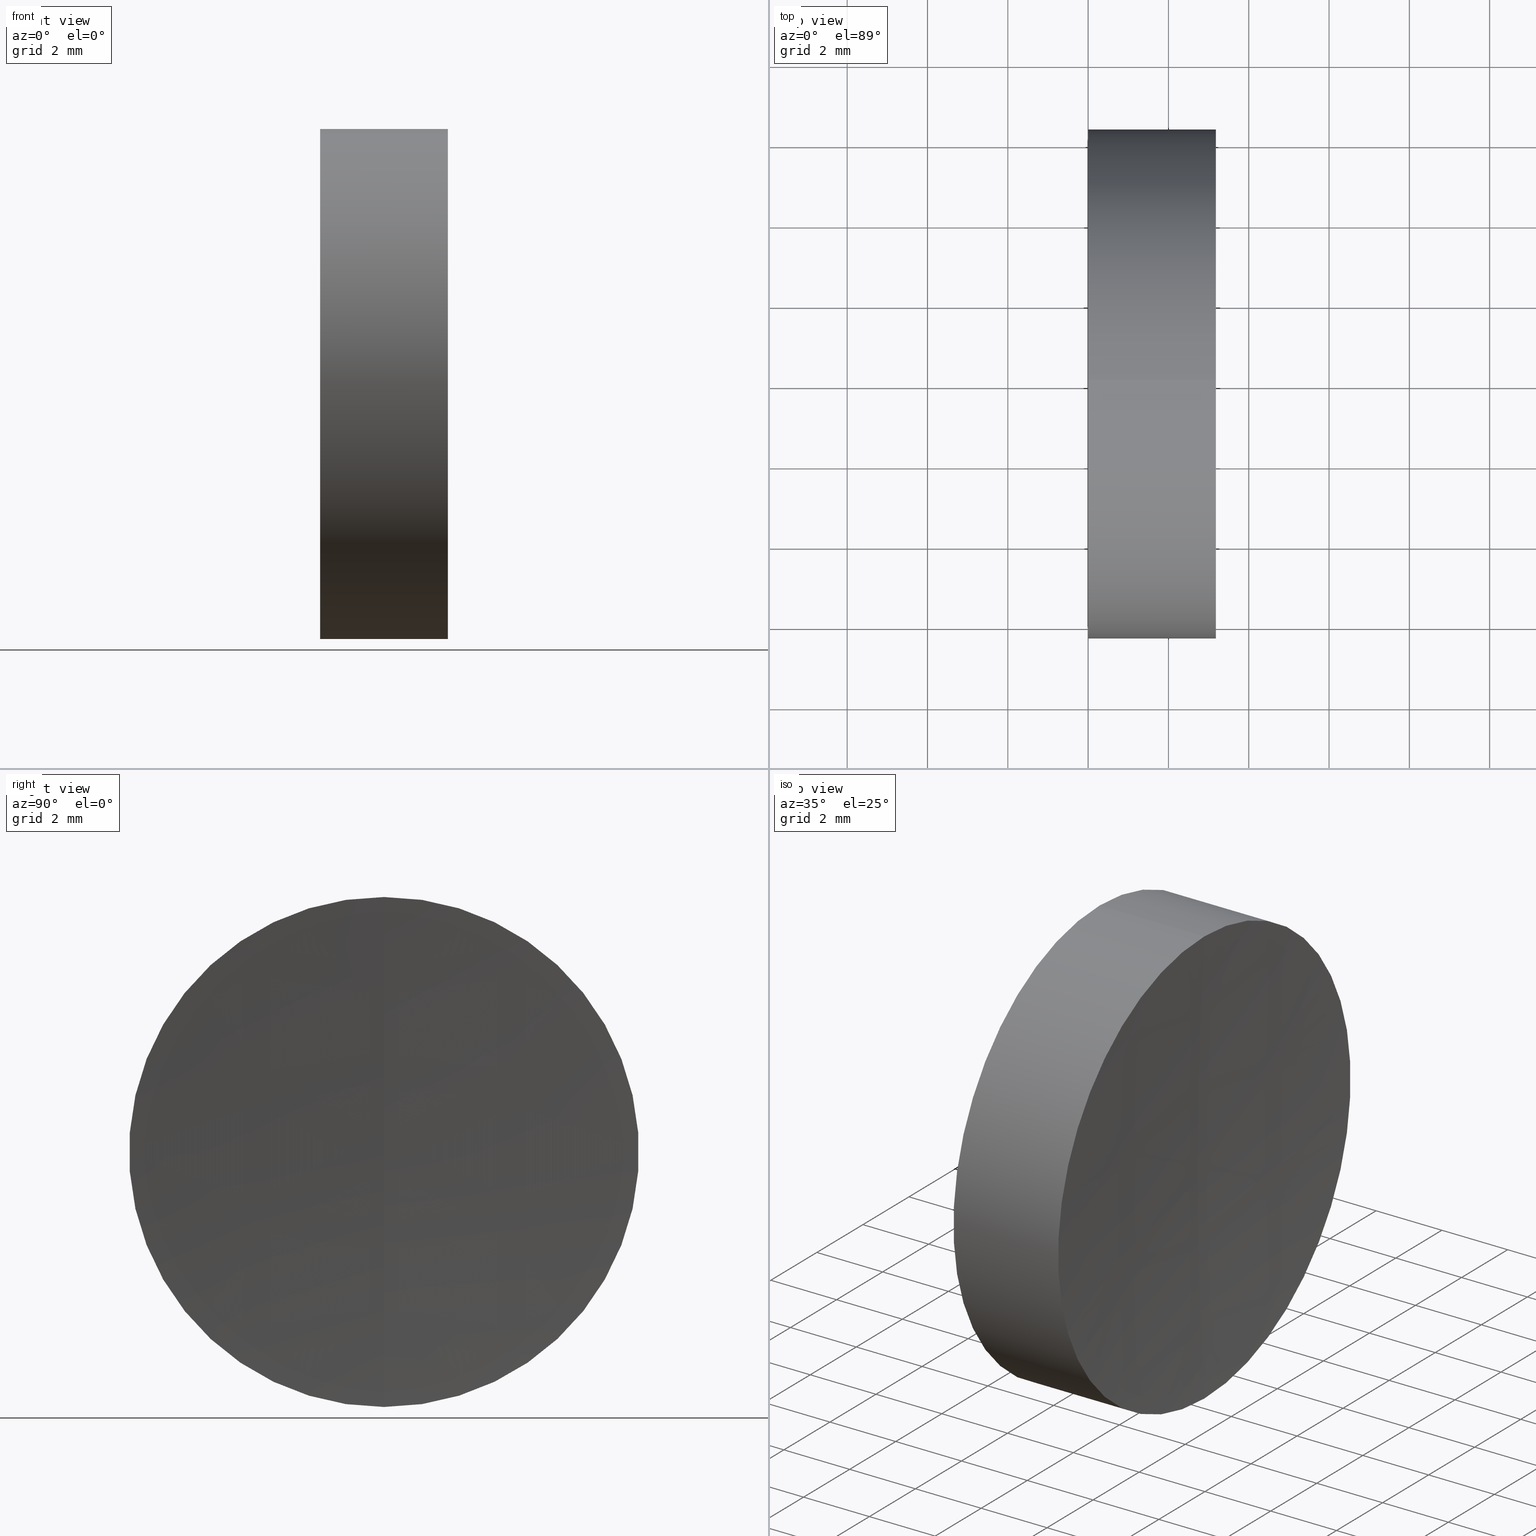
[diagram: canonical four-view strip — front | top / right | iso, engineering-drawing reading convention]
A machine part, canonical four-view strip (front | top / right | iso — engineering-drawing reading convention). The complete STEP part file that produces these views, byte-faithful:
ISO-10303-21;
HEADER;
FILE_DESCRIPTION (( 'STEP AP214' ),
    '1' );
FILE_NAME ('432502.STEP',
    '2019-08-26T08:35:27',
    ( 'user' ),
    ( '΢���й�' ),
    'SwSTEP 2.0',
    'SolidWorks 2016',
    '' );
FILE_SCHEMA (( 'AUTOMOTIVE_DESIGN' ));
ENDSEC;

DATA;
#1 = SURFACE_SIDE_STYLE ('',( #146 ) ) ;
#2 =( GEOMETRIC_REPRESENTATION_CONTEXT ( 3 ) GLOBAL_UNCERTAINTY_ASSIGNED_CONTEXT ( ( #106 ) ) GLOBAL_UNIT_ASSIGNED_CONTEXT ( ( #75, #124, #123 ) ) REPRESENTATION_CONTEXT ( 'NONE', 'WORKASPACE' ) );
#3 = AXIS2_PLACEMENT_3D ( 'NONE', #121, #131, #147 ) ;
#4 = CARTESIAN_POINT ( 'NONE',  ( 102.9800000000000000, 0.0000000000000000000, 0.0000000000000000000 ) ) ;
#5 = ADVANCED_FACE ( 'NONE', ( #67 ), #70, .T. ) ;
#6 = EDGE_CURVE ( 'NONE', #82, #100, #13, .T. ) ;
#7 = FILL_AREA_STYLE ('',( #136 ) ) ;
#8 = MECHANICAL_DESIGN_GEOMETRIC_PRESENTATION_REPRESENTATION (  '', ( #80 ), #2 ) ;
#9 = PRODUCT_CONTEXT ( 'NONE', #101, 'mechanical' ) ;
#10 = EDGE_LOOP ( 'NONE', ( #165, #148, #105 ) ) ;
#11 = FACE_OUTER_BOUND ( 'NONE', #91, .T. ) ;
#12 = EDGE_CURVE ( 'NONE', #82, #58, #140, .T. ) ;
#13 = CIRCLE ( 'NONE', #118, 100.0000000000000000 ) ;
#14 =( LENGTH_UNIT ( ) NAMED_UNIT ( * ) SI_UNIT ( .MILLI., .METRE. ) );
#15 = DIRECTION ( 'NONE',  ( 0.0000000000000000000, 0.0000000000000000000, 1.000000000000000000 ) ) ;
#16 = FILL_AREA_STYLE ('',( #95 ) ) ;
#17 = AXIS2_PLACEMENT_3D ( 'NONE', #18, #42, #45 ) ;
#18 = CARTESIAN_POINT ( 'NONE',  ( 102.9800000000000000, 0.0000000000000000000, 0.0000000000000000000 ) ) ;
#19 = CARTESIAN_POINT ( 'NONE',  ( 0.0000000000000000000, 0.0000000000000000000, 0.0000000000000000000 ) ) ;
#20 = APPLICATION_PROTOCOL_DEFINITION ( 'draft international standard', 'automotive_design', 1998, #101 ) ;
#21 = DIRECTION ( 'NONE',  ( 0.0000000000000000000, 1.000000000000000000, 0.0000000000000000000 ) ) ;
#22 = ORIENTED_EDGE ( 'NONE', *, *, #12, .T. ) ;
#23 = AXIS2_PLACEMENT_3D ( 'NONE', #56, #160, #145 ) ;
#24 = PRESENTATION_STYLE_ASSIGNMENT (( #84 ) ) ;
#25 = ORIENTED_EDGE ( 'NONE', *, *, #92, .T. ) ;
#26 = MANIFOLD_SOLID_BREP ( '��ת1', #132 ) ;
#27 = COLOUR_RGB ( '',1.000000000000000000, 1.000000000000000000, 1.000000000000000000 ) ;
#28 = DIRECTION ( 'NONE',  ( 0.0000000000000000000, 0.0000000000000000000, 1.000000000000000000 ) ) ;
#29 = LINE ( 'NONE', #64, #141 ) ;
#30 = DIRECTION ( 'NONE',  ( -1.000000000000000000, -0.0000000000000000000, -0.0000000000000000000 ) ) ;
#31 = SPHERICAL_SURFACE ( 'NONE', #17, 100.0000000000000000 ) ;
#32 = EDGE_CURVE ( 'NONE', #58, #82, #116, .T. ) ;
#33 = EDGE_CURVE ( 'NONE', #58, #100, #163, .T. ) ;
#34 = CARTESIAN_POINT ( 'NONE',  ( 0.0000000000000000000, 0.0000000000000000000, 0.0000000000000000000 ) ) ;
#35 = AXIS2_PLACEMENT_3D ( 'NONE', #65, #152, #63 ) ;
#36 = SURFACE_STYLE_USAGE ( .BOTH. , #1 ) ;
#37 = ORIENTED_EDGE ( 'NONE', *, *, #32, .T. ) ;
#38 = PRODUCT ( '432502', '432502', '', ( #9 ) ) ;
#39 = ADVANCED_BREP_SHAPE_REPRESENTATION ( '432502', ( #26, #35 ), #125 ) ;
#40 = SURFACE_SIDE_STYLE ('',( #98 ) ) ;
#41 = PRESENTATION_LAYER_ASSIGNMENT (  '', '', ( #111 ) ) ;
#42 = DIRECTION ( 'NONE',  ( 0.0000000000000000000, 1.000000000000000000, 0.0000000000000000000 ) ) ;
#43 = CARTESIAN_POINT ( 'NONE',  ( 102.9800000000000000, 0.0000000000000000000, 0.0000000000000000000 ) ) ;
#44 = ORIENTED_EDGE ( 'NONE', *, *, #12, .F. ) ;
#45 = DIRECTION ( 'NONE',  ( 0.0000000000000000000, 0.0000000000000000000, 1.000000000000000000 ) ) ;
#46 = DIRECTION ( 'NONE',  ( -1.000000000000000000, -0.0000000000000000000, -0.0000000000000000000 ) ) ;
#47 = VECTOR ( 'NONE', #73, 1000.000000000000000 ) ;
#48 = MECHANICAL_DESIGN_GEOMETRIC_PRESENTATION_REPRESENTATION (  '', ( #111 ), #99 ) ;
#49 = DIRECTION ( 'NONE',  ( 0.0000000000000000000, 0.0000000000000000000, 1.000000000000000000 ) ) ;
#50 = UNCERTAINTY_MEASURE_WITH_UNIT (LENGTH_MEASURE( 1.000000000000000100E-005 ), #14, 'distance_accuracy_value', 'NONE');
#51 = APPLICATION_PROTOCOL_DEFINITION ( 'draft international standard', 'automotive_design', 1998, #127 ) ;
#52 = AXIS2_PLACEMENT_3D ( 'NONE', #83, #30, #85 ) ;
#53 = LINE ( 'NONE', #159, #47 ) ;
#54 = PRODUCT_DEFINITION_CONTEXT ( 'detailed design', #127, 'design' ) ;
#55 = DIRECTION ( 'NONE',  ( 0.0000000000000000000, 0.0000000000000000000, 1.000000000000000000 ) ) ;
#56 = CARTESIAN_POINT ( 'NONE',  ( 0.0000000000000000000, 0.0000000000000000000, 0.0000000000000000000 ) ) ;
#57 =( NAMED_UNIT ( * ) SI_UNIT ( $, .STERADIAN. ) SOLID_ANGLE_UNIT ( ) );
#58 = VERTEX_POINT ( 'NONE', #134 ) ;
#59 = PLANE ( 'NONE',  #61 ) ;
#60 = DIRECTION ( 'NONE',  ( 0.0000000000000000000, 0.0000000000000000000, -1.000000000000000000 ) ) ;
#61 = AXIS2_PLACEMENT_3D ( 'NONE', #19, #130, #60 ) ;
#62 = ADVANCED_FACE ( 'NONE', ( #68 ), #59, .F. ) ;
#63 = DIRECTION ( 'NONE',  ( 1.000000000000000000, 0.0000000000000000000, 0.0000000000000000000 ) ) ;
#64 = CARTESIAN_POINT ( 'NONE',  ( 0.0000000000000000000, 7.776507174585694100E-016, -6.350000000000001400 ) ) ;
#65 = CARTESIAN_POINT ( 'NONE',  ( 0.0000000000000000000, 0.0000000000000000000, 0.0000000000000000000 ) ) ;
#66 = CIRCLE ( 'NONE', #87, 6.349999999999999600 ) ;
#67 = FACE_OUTER_BOUND ( 'NONE', #109, .T. ) ;
#68 = FACE_OUTER_BOUND ( 'NONE', #142, .T. ) ;
#69 = DIRECTION ( 'NONE',  ( -1.000000000000000000, -0.0000000000000000000, -0.0000000000000000000 ) ) ;
#70 = CYLINDRICAL_SURFACE ( 'NONE', #23, 6.350000000000001400 ) ;
#71 = ORIENTED_EDGE ( 'NONE', *, *, #6, .T. ) ;
#72 = PRODUCT_DEFINITION ( 'δ֪', '', #120, #54 ) ;
#73 = DIRECTION ( 'NONE',  ( -1.000000000000000000, -0.0000000000000000000, -0.0000000000000000000 ) ) ;
#74 = CARTESIAN_POINT ( 'NONE',  ( 0.0000000000000000000, 7.776507174585693100E-016, -6.349999999999999600 ) ) ;
#75 =( LENGTH_UNIT ( ) NAMED_UNIT ( * ) SI_UNIT ( .MILLI., .METRE. ) );
#76 = EDGE_CURVE ( 'NONE', #58, #166, #53, .T. ) ;
#77 = ORIENTED_EDGE ( 'NONE', *, *, #157, .T. ) ;
#78 = ORIENTED_EDGE ( 'NONE', *, *, #139, .T. ) ;
#79 = FACE_OUTER_BOUND ( 'NONE', #10, .T. ) ;
#80 = STYLED_ITEM ( 'NONE', ( #104 ), #39 ) ;
#81 = UNCERTAINTY_MEASURE_WITH_UNIT (LENGTH_MEASURE( 1.000000000000000100E-005 ), #154, 'distance_accuracy_value', 'NONE');
#82 = VERTEX_POINT ( 'NONE', #129 ) ;
#83 = CARTESIAN_POINT ( 'NONE',  ( 3.181816148789554000, 0.0000000000000000000, 0.0000000000000000000 ) ) ;
#84 = SURFACE_STYLE_USAGE ( .BOTH. , #40 ) ;
#85 = DIRECTION ( 'NONE',  ( 0.0000000000000000000, 0.0000000000000000000, 1.000000000000000000 ) ) ;
#86 = EDGE_LOOP ( 'NONE', ( #122, #22, #137, #89 ) ) ;
#87 = AXIS2_PLACEMENT_3D ( 'NONE', #34, #126, #49 ) ;
#88 =( NAMED_UNIT ( * ) SI_UNIT ( $, .STERADIAN. ) SOLID_ANGLE_UNIT ( ) );
#89 = ORIENTED_EDGE ( 'NONE', *, *, #157, .F. ) ;
#90 = SPHERICAL_SURFACE ( 'NONE', #135, 100.0000000000000000 ) ;
#91 = EDGE_LOOP ( 'NONE', ( #44, #71, #156 ) ) ;
#92 = EDGE_CURVE ( 'NONE', #166, #133, #115, .T. ) ;
#93 = CARTESIAN_POINT ( 'NONE',  ( 0.0000000000000000000, 0.0000000000000000000, 0.0000000000000000000 ) ) ;
#94 = SHAPE_DEFINITION_REPRESENTATION ( #151, #39 ) ;
#95 = FILL_AREA_STYLE_COLOUR ( '', #27 ) ;
#96 =( NAMED_UNIT ( * ) PLANE_ANGLE_UNIT ( ) SI_UNIT ( $, .RADIAN. ) );
#97 = DIRECTION ( 'NONE',  ( -1.000000000000000000, -0.0000000000000000000, -0.0000000000000000000 ) ) ;
#98 = SURFACE_STYLE_FILL_AREA ( #16 ) ;
#99 =( GEOMETRIC_REPRESENTATION_CONTEXT ( 3 ) GLOBAL_UNCERTAINTY_ASSIGNED_CONTEXT ( ( #50 ) ) GLOBAL_UNIT_ASSIGNED_CONTEXT ( ( #14, #96, #57 ) ) REPRESENTATION_CONTEXT ( 'NONE', 'WORKASPACE' ) );
#100 = VERTEX_POINT ( 'NONE', #138 ) ;
#101 = APPLICATION_CONTEXT ( 'automotive_design' ) ;
#102 = ADVANCED_FACE ( 'NONE', ( #79 ), #90, .F. ) ;
#103 = AXIS2_PLACEMENT_3D ( 'NONE', #114, #150, #55 ) ;
#104 = PRESENTATION_STYLE_ASSIGNMENT (( #36 ) ) ;
#105 = ORIENTED_EDGE ( 'NONE', *, *, #33, .T. ) ;
#106 = UNCERTAINTY_MEASURE_WITH_UNIT (LENGTH_MEASURE( 1.000000000000000100E-005 ), #75, 'distance_accuracy_value', 'NONE');
#107 = DIRECTION ( 'NONE',  ( 0.0000000000000000000, -1.224646799147353200E-016, 1.000000000000000000 ) ) ;
#108 = PRESENTATION_LAYER_ASSIGNMENT (  '', '', ( #80 ) ) ;
#109 = EDGE_LOOP ( 'NONE', ( #37, #78, #117, #158 ) ) ;
#110 = ADVANCED_FACE ( 'NONE', ( #11 ), #31, .F. ) ;
#111 = STYLED_ITEM ( 'NONE', ( #24 ), #26 ) ;
#112 = DIRECTION ( 'NONE',  ( 0.0000000000000000000, 0.0000000000000000000, 1.000000000000000000 ) ) ;
#113 = PRODUCT_RELATED_PRODUCT_CATEGORY ( 'part', '', ( #38 ) ) ;
#114 = CARTESIAN_POINT ( 'NONE',  ( 0.0000000000000000000, 0.0000000000000000000, 0.0000000000000000000 ) ) ;
#115 = CIRCLE ( 'NONE', #103, 6.349999999999999600 ) ;
#116 = CIRCLE ( 'NONE', #52, 6.350000000000003200 ) ;
#117 = ORIENTED_EDGE ( 'NONE', *, *, #92, .F. ) ;
#118 = AXIS2_PLACEMENT_3D ( 'NONE', #43, #119, #107 ) ;
#119 = DIRECTION ( 'NONE',  ( -0.0000000000000000000, 1.000000000000000000, 1.224646799147353200E-016 ) ) ;
#120 = PRODUCT_DEFINITION_FORMATION_WITH_SPECIFIED_SOURCE ( '�κ�', '', #38, .NOT_KNOWN. ) ;
#121 = CARTESIAN_POINT ( 'NONE',  ( 102.9800000000000000, 0.0000000000000000000, 0.0000000000000000000 ) ) ;
#122 = ORIENTED_EDGE ( 'NONE', *, *, #139, .F. ) ;
#123 =( NAMED_UNIT ( * ) SI_UNIT ( $, .STERADIAN. ) SOLID_ANGLE_UNIT ( ) );
#124 =( NAMED_UNIT ( * ) PLANE_ANGLE_UNIT ( ) SI_UNIT ( $, .RADIAN. ) );
#125 =( GEOMETRIC_REPRESENTATION_CONTEXT ( 3 ) GLOBAL_UNCERTAINTY_ASSIGNED_CONTEXT ( ( #81 ) ) GLOBAL_UNIT_ASSIGNED_CONTEXT ( ( #154, #164, #88 ) ) REPRESENTATION_CONTEXT ( 'NONE', 'WORKASPACE' ) );
#126 = DIRECTION ( 'NONE',  ( -1.000000000000000000, -0.0000000000000000000, -0.0000000000000000000 ) ) ;
#127 = APPLICATION_CONTEXT ( 'automotive_design' ) ;
#128 = COLOUR_RGB ( '',1.000000000000000000, 1.000000000000000000, 1.000000000000000000 ) ;
#129 = CARTESIAN_POINT ( 'NONE',  ( 3.181816148789554000, 7.776507174585711900E-016, -6.350000000000015600 ) ) ;
#130 = DIRECTION ( 'NONE',  ( 1.000000000000000000, 0.0000000000000000000, 0.0000000000000000000 ) ) ;
#131 = DIRECTION ( 'NONE',  ( 0.0000000000000000000, -1.000000000000000000, 0.0000000000000000000 ) ) ;
#132 = CLOSED_SHELL ( 'NONE', ( #5, #110, #62, #102, #161 ) ) ;
#133 = VERTEX_POINT ( 'NONE', #74 ) ;
#134 = CARTESIAN_POINT ( 'NONE',  ( 3.181816148789554000, 0.0000000000000000000, 6.350000000000015600 ) ) ;
#135 = AXIS2_PLACEMENT_3D ( 'NONE', #4, #21, #15 ) ;
#136 = FILL_AREA_STYLE_COLOUR ( '', #128 ) ;
#137 = ORIENTED_EDGE ( 'NONE', *, *, #76, .T. ) ;
#138 = CARTESIAN_POINT ( 'NONE',  ( 2.979999999999996400, 0.0000000000000000000, 6.123233995736766100E-015 ) ) ;
#139 = EDGE_CURVE ( 'NONE', #82, #133, #29, .T. ) ;
#140 = CIRCLE ( 'NONE', #144, 6.350000000000003200 ) ;
#141 = VECTOR ( 'NONE', #46, 1000.000000000000000 ) ;
#142 = EDGE_LOOP ( 'NONE', ( #25, #77 ) ) ;
#143 = CARTESIAN_POINT ( 'NONE',  ( 3.181816148789554000, 0.0000000000000000000, 0.0000000000000000000 ) ) ;
#144 = AXIS2_PLACEMENT_3D ( 'NONE', #143, #69, #28 ) ;
#145 = DIRECTION ( 'NONE',  ( 0.0000000000000000000, 0.0000000000000000000, 1.000000000000000000 ) ) ;
#146 = SURFACE_STYLE_FILL_AREA ( #7 ) ;
#147 = DIRECTION ( 'NONE',  ( 0.0000000000000000000, 0.0000000000000000000, -1.000000000000000000 ) ) ;
#148 = ORIENTED_EDGE ( 'NONE', *, *, #32, .F. ) ;
#149 = CARTESIAN_POINT ( 'NONE',  ( 0.0000000000000000000, 0.0000000000000000000, 6.349999999999999600 ) ) ;
#150 = DIRECTION ( 'NONE',  ( -1.000000000000000000, -0.0000000000000000000, -0.0000000000000000000 ) ) ;
#151 = PRODUCT_DEFINITION_SHAPE ( 'NONE', 'NONE',  #72 ) ;
#152 = DIRECTION ( 'NONE',  ( 0.0000000000000000000, 0.0000000000000000000, 1.000000000000000000 ) ) ;
#153 = AXIS2_PLACEMENT_3D ( 'NONE', #93, #97, #112 ) ;
#154 =( LENGTH_UNIT ( ) NAMED_UNIT ( * ) SI_UNIT ( .MILLI., .METRE. ) );
#155 = FACE_OUTER_BOUND ( 'NONE', #86, .T. ) ;
#156 = ORIENTED_EDGE ( 'NONE', *, *, #33, .F. ) ;
#157 = EDGE_CURVE ( 'NONE', #133, #166, #66, .T. ) ;
#158 = ORIENTED_EDGE ( 'NONE', *, *, #76, .F. ) ;
#159 = CARTESIAN_POINT ( 'NONE',  ( 0.0000000000000000000, 0.0000000000000000000, 6.350000000000001400 ) ) ;
#160 = DIRECTION ( 'NONE',  ( -1.000000000000000000, -0.0000000000000000000, -0.0000000000000000000 ) ) ;
#161 = ADVANCED_FACE ( 'NONE', ( #155 ), #162, .T. ) ;
#162 = CYLINDRICAL_SURFACE ( 'NONE', #153, 6.350000000000001400 ) ;
#163 = CIRCLE ( 'NONE', #3, 100.0000000000000000 ) ;
#164 =( NAMED_UNIT ( * ) PLANE_ANGLE_UNIT ( ) SI_UNIT ( $, .RADIAN. ) );
#165 = ORIENTED_EDGE ( 'NONE', *, *, #6, .F. ) ;
#166 = VERTEX_POINT ( 'NONE', #149 ) ;
ENDSEC;
END-ISO-10303-21;
